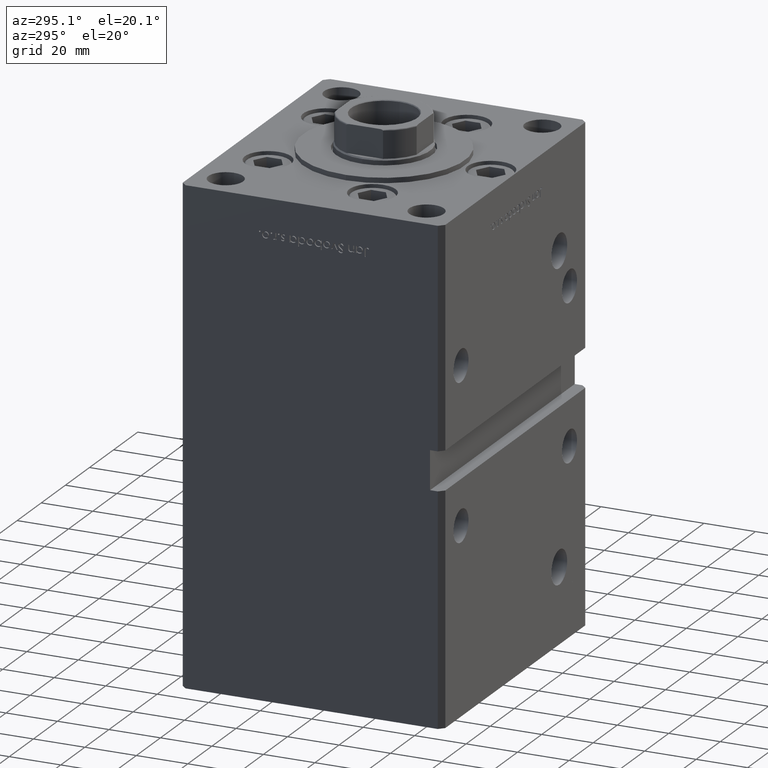
[diagram: clean part render]
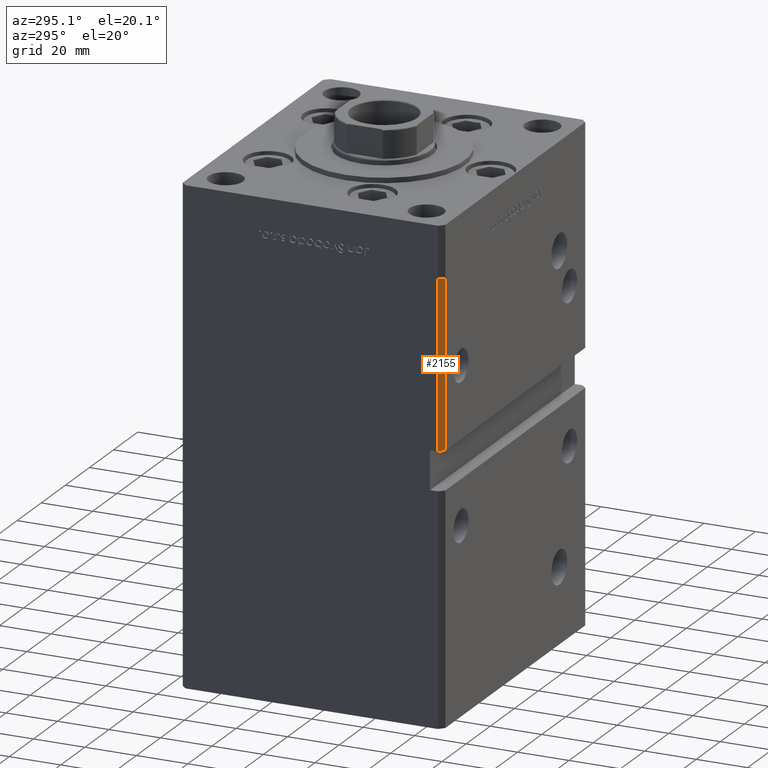
[diagram: same view with one face highlighted and labeled with its STEP entity id]
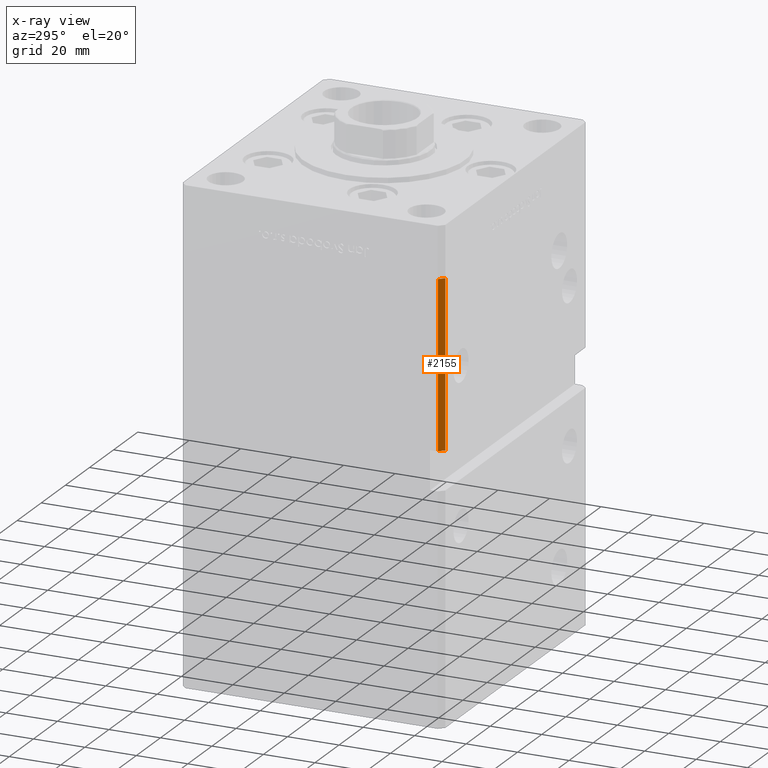
[diagram: x-ray of the same camera — body ghosted, the highlighted face saturated]
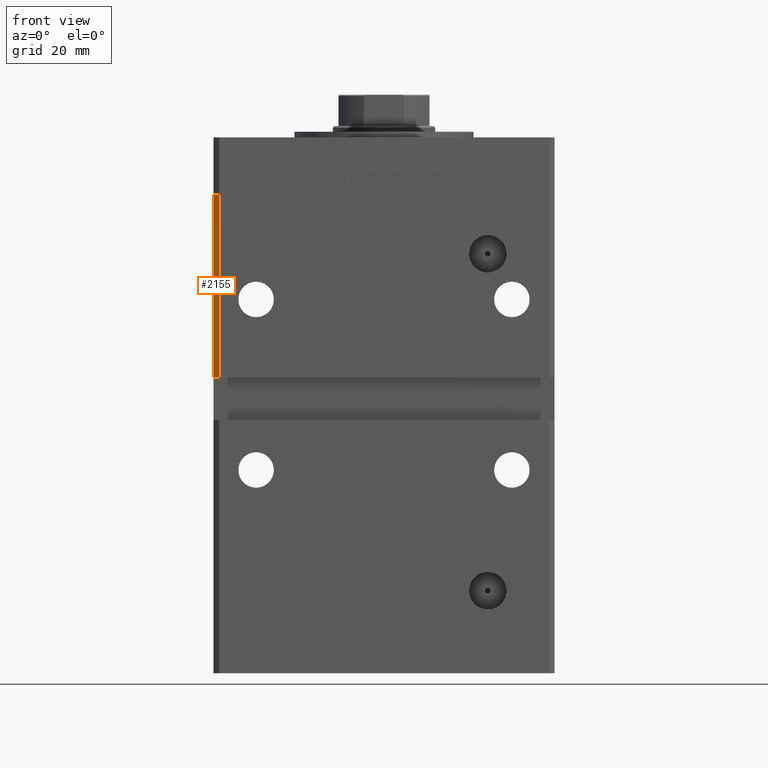
[diagram: same view with one face highlighted and labeled with its STEP entity id]
A machine part, auxiliary view. The second image highlights one B-rep face of the part: STEP entity #2155.
The next image is the same camera in x-ray: the body ghosted, the highlighted face saturated — about 0% of this face is hidden behind the body in this view.
A second angle (front view) of the same face is appended — the face is thin or edge-on in the first view.
In plain terms, the highlighted planar face has unit normal (0.7071, 0.7071, 0).
Its self-contained STEP definition (entity closure, byte-faithful):
#513 = EDGE_CURVE ( 'NONE', #9882, #35290, #25909, .T. ) ;
#2155 = ADVANCED_FACE ( 'NONE', ( #32391 ), #28354, .F. ) ;
#3759 = EDGE_CURVE ( 'NONE', #51028, #48076, #4568, .T. ) ;
#3873 = CARTESIAN_POINT ( 'NONE',  ( -57.99999999999997868, -50.99999999999999289, 148.5000000000000000 ) ) ;
#4377 = CARTESIAN_POINT ( 'NONE',  ( -59.99999999999998579, -48.99999999999998579, 148.5000000000000000 ) ) ;
#4568 = LINE ( 'NONE', #5365, #36651 ) ;
#5365 = CARTESIAN_POINT ( 'NONE',  ( -59.99999999999998579, -48.99999999999998579, 148.5000000000000000 ) ) ;
#7744 = EDGE_CURVE ( 'NONE', #51028, #9882, #36068, .T. ) ;
#9218 = DIRECTION ( 'NONE',  ( -0.000000000000000000, -0.000000000000000000, -1.000000000000000000 ) ) ;
#9882 = VERTEX_POINT ( 'NONE', #49130 ) ;
#10109 = AXIS2_PLACEMENT_3D ( 'NONE', #27839, #44456, #48217 ) ;
#10450 = CARTESIAN_POINT ( 'NONE',  ( -57.99999999999997868, -50.99999999999999289, 83.99999999999998579 ) ) ;
#14133 = DIRECTION ( 'NONE',  ( 0.7071067811865474617, -0.7071067811865474617, 0.000000000000000000 ) ) ;
#17717 = DIRECTION ( 'NONE',  ( 0.7071067811865474617, -0.7071067811865474617, 0.000000000000000000 ) ) ;
#21495 = CARTESIAN_POINT ( 'NONE',  ( -59.99999999999998579, -48.99999999999998579, 148.5000000000000000 ) ) ;
#24509 = VECTOR ( 'NONE', #9218, 1000.000000000000000 ) ;
#24664 = VECTOR ( 'NONE', #41055, 1000.000000000000000 ) ;
#25909 = LINE ( 'NONE', #42534, #39114 ) ;
#26163 = EDGE_LOOP ( 'NONE', ( #41907, #43414, #47351, #48123 ) ) ;
#27839 = CARTESIAN_POINT ( 'NONE',  ( -59.99999999999998579, -48.99999999999998579, 148.5000000000000000 ) ) ;
#28354 = PLANE ( 'NONE',  #10109 ) ;
#32391 = FACE_OUTER_BOUND ( 'NONE', #26163, .T. ) ;
#35290 = VERTEX_POINT ( 'NONE', #10450 ) ;
#36068 = LINE ( 'NONE', #21495, #24664 ) ;
#36651 = VECTOR ( 'NONE', #17717, 1000.000000000000114 ) ;
#39114 = VECTOR ( 'NONE', #14133, 1000.000000000000114 ) ;
#40254 = EDGE_CURVE ( 'NONE', #48076, #35290, #45148, .T. ) ;
#41055 = DIRECTION ( 'NONE',  ( -0.000000000000000000, -0.000000000000000000, -1.000000000000000000 ) ) ;
#41907 = ORIENTED_EDGE ( 'NONE', *, *, #7744, .T. ) ;
#42534 = CARTESIAN_POINT ( 'NONE',  ( -59.99999999999998579, -48.99999999999998579, 83.99999999999998579 ) ) ;
#43414 = ORIENTED_EDGE ( 'NONE', *, *, #513, .T. ) ;
#43818 = CARTESIAN_POINT ( 'NONE',  ( -57.99999999999997868, -50.99999999999999289, 148.5000000000000000 ) ) ;
#44456 = DIRECTION ( 'NONE',  ( 0.7071067811865475727, 0.7071067811865475727, -0.000000000000000000 ) ) ;
#45148 = LINE ( 'NONE', #3873, #24509 ) ;
#47351 = ORIENTED_EDGE ( 'NONE', *, *, #40254, .F. ) ;
#48076 = VERTEX_POINT ( 'NONE', #43818 ) ;
#48123 = ORIENTED_EDGE ( 'NONE', *, *, #3759, .F. ) ;
#48217 = DIRECTION ( 'NONE',  ( -0.7071067811865474617, 0.7071067811865474617, 0.000000000000000000 ) ) ;
#49130 = CARTESIAN_POINT ( 'NONE',  ( -59.99999999999998579, -48.99999999999998579, 83.99999999999998579 ) ) ;
#51028 = VERTEX_POINT ( 'NONE', #4377 ) ;